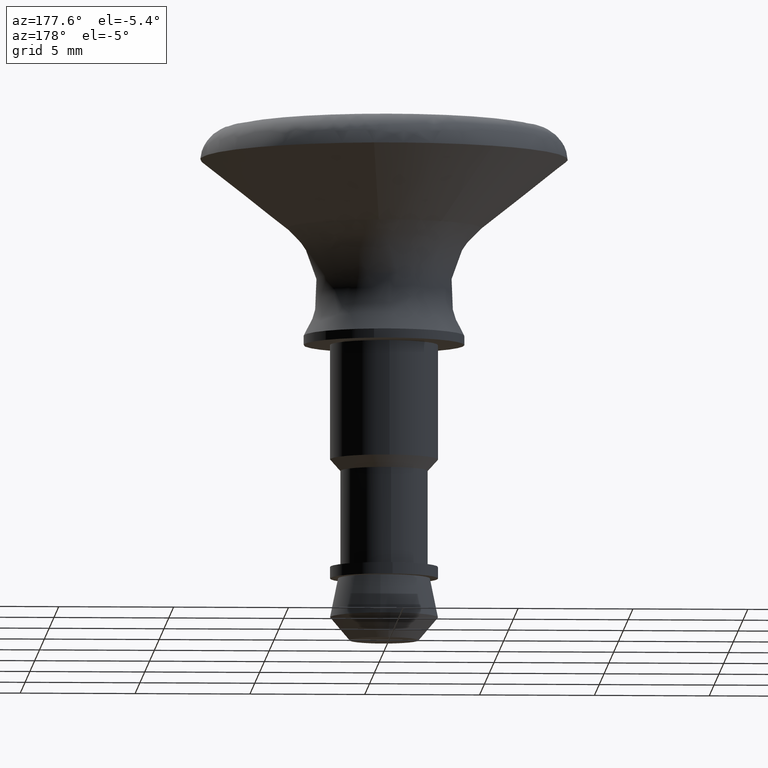
[diagram: clean part render]
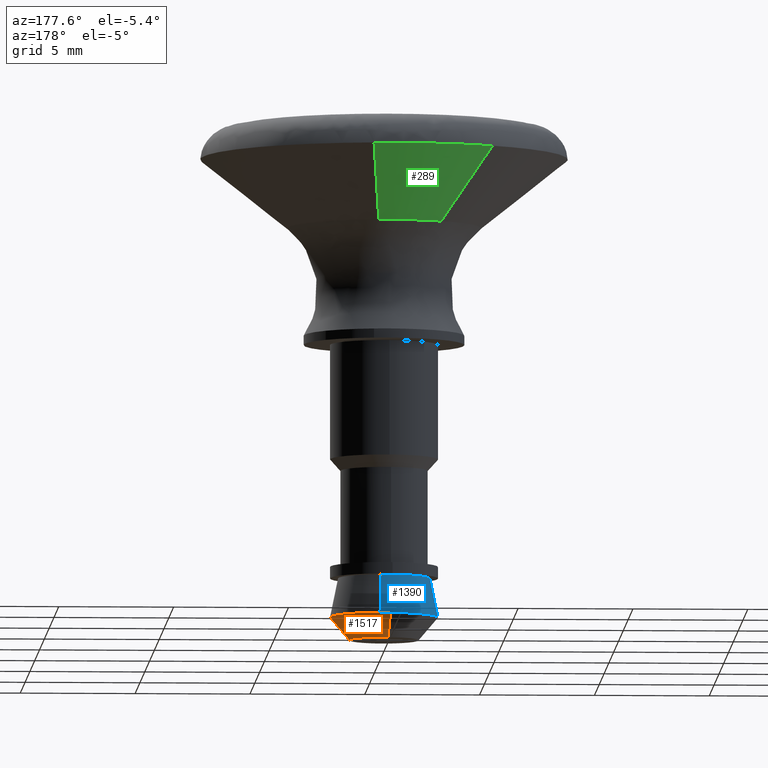
[diagram: same view with three faces highlighted in distinct colors, each labeled with its STEP entity id]
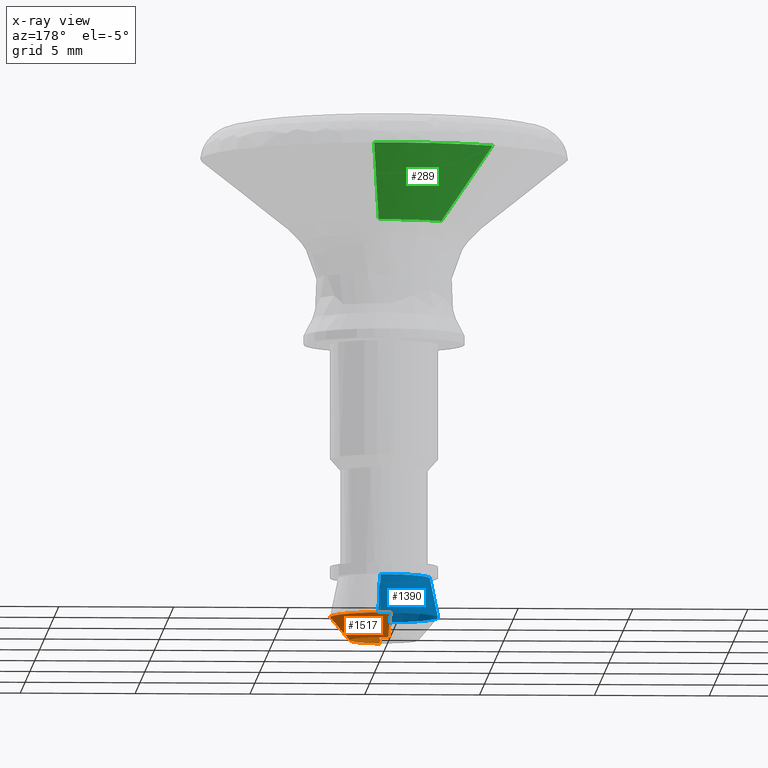
[diagram: x-ray of the same camera — body ghosted, the three highlighted faces saturated]
A machine part, auxiliary view with three faces highlighted in distinct colors.
The next image is the same camera in x-ray (body ghosted, the three faces saturated) — at least one of them is partly hidden behind the body in this view.
Their STEP definitions:

[orange] entity #1517 — the highlighted face is a freeform B-spline surface patch.
#1204=CARTESIAN_POINT('',(0.268136562146236,2.334652604573378,-11.900000000000890));
#1205=VERTEX_POINT('',#1204);
#1206=CARTESIAN_POINT('',(2.350000000000000,0.0,-11.900000000000000));
#1207=VERTEX_POINT('',#1206);
#1208=CARTESIAN_POINT('',(0.268136562146236,2.334652604573378,-11.900000000000894));
#1209=CARTESIAN_POINT('',(2.350000000000001,2.095549063427940,-11.899999999999999));
#1210=CARTESIAN_POINT('',(2.350000000000000,0.0,-11.900000000000000));
#1218=(BOUNDED_CURVE()B_SPLINE_CURVE(2,(#1208,#1209,#1210),.UNSPECIFIED.,.F.,.U.)B_SPLINE_CURVE_WITH_KNOTS((3,3),(0.269767755877532,0.500000000000000),.UNSPECIFIED.)CURVE()GEOMETRIC_REPRESENTATION_ITEM()RATIONAL_B_SPLINE_CURVE((0.957343736458842,0.730266147777304,1.0))REPRESENTATION_ITEM(''));
#1219=EDGE_CURVE('',#1205,#1207,#1218,.T.);
#1258=CARTESIAN_POINT('',(0.153692986142640,-2.344905054886845,-11.900017217113840));
#1259=VERTEX_POINT('',#1258);
#1265=CARTESIAN_POINT('',(2.350000000000000,0.0,-11.900000000000000));
#1266=CARTESIAN_POINT('',(2.349997921340955,-2.200983672277677,-11.900008608556918));
#1267=CARTESIAN_POINT('',(0.153692986142640,-2.344905054886846,-11.900017217113831));
#1275=(BOUNDED_CURVE()B_SPLINE_CURVE(2,(#1265,#1266,#1267),.UNSPECIFIED.,.F.,.U.)B_SPLINE_CURVE_WITH_KNOTS((3,3),(0.500000000000000,0.738580720876334),.UNSPECIFIED.)CURVE()GEOMETRIC_REPRESENTATION_ITEM()RATIONAL_B_SPLINE_CURVE((1.0,0.720485298862786,0.974465148868370))REPRESENTATION_ITEM(''));
#1276=EDGE_CURVE('',#1207,#1259,#1275,.T.);
#1307=CARTESIAN_POINT('',(-0.184378875007408,2.342755734274979,-11.899999999993170));
#1308=VERTEX_POINT('',#1307);
#1309=CARTESIAN_POINT('',(-0.184378875007408,2.342755734274979,-11.899999999993174));
#1310=CARTESIAN_POINT('',(-0.092331751514755,2.350000000000001,-11.900000000000002));
#1311=CARTESIAN_POINT('',(0.0,2.350000000000000,-11.900000000000000));
#1312=CARTESIAN_POINT('',(0.134507502315870,2.350000000000001,-11.900000000000000));
#1313=CARTESIAN_POINT('',(0.268136562146236,2.334652604573379,-11.900000000000896));
#1321=(BOUNDED_CURVE()B_SPLINE_CURVE(2,(#1309,#1310,#1311,#1312,#1313),.UNSPECIFIED.,.F.,.U.)B_SPLINE_CURVE_WITH_KNOTS((3,2,3),(0.236331300625960,0.250000000000000,0.269767755877533),.UNSPECIFIED.)CURVE()GEOMETRIC_REPRESENTATION_ITEM()RATIONAL_B_SPLINE_CURVE((0.969723356157609,0.983986122573375,1.0,0.976840633409244,0.957343736458842))REPRESENTATION_ITEM(''));
#1322=EDGE_CURVE('',#1308,#1205,#1321,.T.);
#1410=CARTESIAN_POINT('',(-0.117680797802618,1.495276308871712,-12.899999999982560));
#1411=VERTEX_POINT('',#1410);
#1412=CARTESIAN_POINT('',(-0.117680797802618,1.495276308871712,-12.899999999982560));
#1413=CARTESIAN_POINT('',(-0.184378875007408,2.342755734274979,-11.899999999993170));
#1414=QUASI_UNIFORM_CURVE('',1,(#1412,#1413),.UNSPECIFIED.,.F.,.U.);
#1415=EDGE_CURVE('',#1411,#1308,#1414,.T.);
#1432=CARTESIAN_POINT('',(0.117680797802617,-1.495276308871712,-12.899999999982560));
#1433=VERTEX_POINT('',#1432);
#1449=CARTESIAN_POINT('',(0.117680797802617,-1.495276308871712,-12.899999999982560));
#1450=CARTESIAN_POINT('',(0.153692986142640,-2.344905054886845,-11.900017217113840));
#1451=QUASI_UNIFORM_CURVE('',1,(#1449,#1450),.UNSPECIFIED.,.F.,.U.);
#1452=EDGE_CURVE('',#1433,#1259,#1451,.T.);
#1458=CARTESIAN_POINT('',(0.076224169737211,-1.477220799296524,-12.925000000000004));
#1459=CARTESIAN_POINT('',(0.096006915707925,-1.475663863422951,-12.925000000000001));
#1460=CARTESIAN_POINT('',(1.590102668981393,-1.358075977480914,-12.925000000000002));
#1461=CARTESIAN_POINT('',(1.474089323231154,0.116013345750239,-12.925000000000001));
#1462=CARTESIAN_POINT('',(1.358075977480914,1.590102668981393,-12.925000000000002));
#1463=CARTESIAN_POINT('',(-0.126454248476125,1.473267606365836,-12.925000000000002));
#1464=CARTESIAN_POINT('',(-0.136834066238670,1.472450696991396,-12.925000000000008));
#1465=CARTESIAN_POINT('',(0.122265280875915,-2.369495352516280,-11.874375000000001));
#1466=CARTESIAN_POINT('',(0.153997249894994,-2.366997992393571,-11.874375000000001));
#1467=CARTESIAN_POINT('',(2.550560407739587,-2.178384381358204,-11.874375000000001));
#1468=CARTESIAN_POINT('',(2.364472394548896,0.186088013190692,-11.874375000000001));
#1469=CARTESIAN_POINT('',(2.178384381358204,2.550560407739587,-11.874375000000001));
#1470=CARTESIAN_POINT('',(-0.202835455750967,2.363154342234453,-11.874374999999999));
#1471=CARTESIAN_POINT('',(-0.219484916657574,2.361844001243395,-11.874374999999997));
#1479=(BOUNDED_SURFACE()B_SPLINE_SURFACE(2,1,((#1458,#1465),(#1459,#1466),(#1460,#1467),(#1461,#1468),(#1462,#1469),(#1463,#1470),(#1464,#1471)),.UNSPECIFIED.,.F.,.F.,.U.)B_SPLINE_SURFACE_WITH_KNOTS((3,1,2,1,3),(2,2),(0.0,0.075852269472106,4.005552358089974,7.935252446707843,7.974731313946631),(0.0,1.0),.UNSPECIFIED.)GEOMETRIC_REPRESENTATION_ITEM()RATIONAL_B_SPLINE_SURFACE(((1.011307028454583,1.011307028454583),(1.005653514227292,1.005653514227292),(0.707106781186548,0.707106781186548),(1.0,1.0),(0.707106781186548,0.707106781186548),(1.002942487273818,1.002942487273818),(1.005884974547635,1.005884974547635)))REPRESENTATION_ITEM('')SURFACE());
#1480=ORIENTED_EDGE('',*,*,#1322,.T.);
#1481=ORIENTED_EDGE('',*,*,#1219,.T.);
#1482=ORIENTED_EDGE('',*,*,#1276,.T.);
#1483=ORIENTED_EDGE('',*,*,#1452,.F.);
#1484=CARTESIAN_POINT('',(1.499900000000000,0.0,-12.900000000000000));
#1485=VERTEX_POINT('',#1484);
#1486=CARTESIAN_POINT('',(1.499900000000000,0.0,-12.900000000000000));
#1487=CARTESIAN_POINT('',(1.499900000000000,-1.386493298216288,-12.899999999999999));
#1488=CARTESIAN_POINT('',(0.117680797802617,-1.495276308871712,-12.899999999982562));
#1496=(BOUNDED_CURVE()B_SPLINE_CURVE(2,(#1486,#1487,#1488),.UNSPECIFIED.,.F.,.U.)B_SPLINE_CURVE_WITH_KNOTS((3,3),(0.500000000000000,0.736331300605421),.UNSPECIFIED.)CURVE()GEOMETRIC_REPRESENTATION_ITEM()RATIONAL_B_SPLINE_CURVE((1.0,0.723120658637234,0.969723356114747))REPRESENTATION_ITEM(''));
#1497=EDGE_CURVE('',#1485,#1433,#1496,.T.);
#1498=ORIENTED_EDGE('',*,*,#1497,.F.);
#1499=CARTESIAN_POINT('',(-0.117680797802617,1.495276308871712,-12.899999999982560));
#1500=CARTESIAN_POINT('',(-0.058931231620616,1.499900000000001,-12.900000000000004));
#1501=CARTESIAN_POINT('',(0.0,1.499900000000000,-12.900000000000000));
#1502=CARTESIAN_POINT('',(1.499899999999999,1.499899999999999,-12.899999999999999));
#1503=CARTESIAN_POINT('',(1.499900000000000,0.0,-12.900000000000000));
#1511=(BOUNDED_CURVE()B_SPLINE_CURVE(2,(#1499,#1500,#1501,#1502,#1503),.UNSPECIFIED.,.F.,.U.)B_SPLINE_CURVE_WITH_KNOTS((3,2,3),(0.236331300605422,0.250000000000000,0.500000000000000),.UNSPECIFIED.)CURVE()GEOMETRIC_REPRESENTATION_ITEM()RATIONAL_B_SPLINE_CURVE((0.969723356114749,0.983986122549314,1.0,0.707106781186547,1.0))REPRESENTATION_ITEM(''));
#1512=EDGE_CURVE('',#1411,#1485,#1511,.T.);
#1513=ORIENTED_EDGE('',*,*,#1512,.F.);
#1514=ORIENTED_EDGE('',*,*,#1415,.T.);
#1515=EDGE_LOOP('',(#1480,#1481,#1482,#1483,#1498,#1513,#1514));
#1516=FACE_OUTER_BOUND('',#1515,.T.);
#1517=ADVANCED_FACE('',(#1516),#1479,.T.);

[blue] entity #1390 — the highlighted face is a freeform B-spline surface patch.
#1204=CARTESIAN_POINT('',(0.268136562146236,2.334652604573378,-11.900000000000890));
#1205=VERTEX_POINT('',#1204);
#1221=CARTESIAN_POINT('',(0.228189919558263,1.986839039940644,-10.200000000024630));
#1222=VERTEX_POINT('',#1221);
#1223=CARTESIAN_POINT('',(0.228189919558263,1.986839039940644,-10.200000000024630));
#1224=CARTESIAN_POINT('',(0.268136562146236,2.334652604573378,-11.900000000000890));
#1225=QUASI_UNIFORM_CURVE('',1,(#1223,#1224),.UNSPECIFIED.,.F.,.U.);
#1226=EDGE_CURVE('',#1222,#1205,#1225,.T.);
#1243=CARTESIAN_POINT('',(0.122090974220500,-1.996169783363738,-10.200000000000690));
#1244=VERTEX_POINT('',#1243);
#1258=CARTESIAN_POINT('',(0.153692986142640,-2.344905054886845,-11.900017217113840));
#1259=VERTEX_POINT('',#1258);
#1260=CARTESIAN_POINT('',(0.122090974220500,-1.996169783363738,-10.200000000000690));
#1261=CARTESIAN_POINT('',(0.153692986142640,-2.344905054886845,-11.900017217113840));
#1262=QUASI_UNIFORM_CURVE('',1,(#1260,#1261),.UNSPECIFIED.,.F.,.U.);
#1263=EDGE_CURVE('',#1244,#1259,#1262,.T.);
#1281=CARTESIAN_POINT('',(0.159757739684600,-1.985097129611754,-10.157500000000002));
#1282=CARTESIAN_POINT('',(0.140733533881952,-1.986260699884925,-10.157500000000001));
#1283=CARTESIAN_POINT('',(-1.865876961667211,-2.108990255414173,-10.157499999999999));
#1284=CARTESIAN_POINT('',(-1.987433608540693,-0.121556646873481,-10.157500000000001));
#1285=CARTESIAN_POINT('',(-2.108990255414173,1.865876961667211,-10.157499999999999));
#1286=CARTESIAN_POINT('',(-0.121556646873481,1.987433608540693,-10.157500000000001));
#1287=CARTESIAN_POINT('',(0.053225798084893,1.998123760830654,-10.157500000000001));
#1288=CARTESIAN_POINT('',(0.243058714274355,1.976321311323477,-10.157500000000002));
#1289=CARTESIAN_POINT('',(0.259006513567212,1.974489694890392,-10.157500000000002));
#1290=CARTESIAN_POINT('',(0.189269717520081,-2.351803259818898,-11.943562500000011));
#1291=CARTESIAN_POINT('',(0.166731178445733,-2.353181775923048,-11.943562500000006));
#1292=CARTESIAN_POINT('',(-2.210559602052406,-2.498583108917905,-11.943562500000002));
#1293=CARTESIAN_POINT('',(-2.354571355485155,-0.144011753432750,-11.943562500000001));
#1294=CARTESIAN_POINT('',(-2.498583108917905,2.210559602052406,-11.943562500000002));
#1295=CARTESIAN_POINT('',(-0.144011753432750,2.354571355485155,-11.943562500000001));
#1296=CARTESIAN_POINT('',(0.063058176637935,2.367236294962656,-11.943562499999999));
#1297=CARTESIAN_POINT('',(0.287958844950634,2.341406288431416,-11.943562499999999));
#1298=CARTESIAN_POINT('',(0.306852674277370,2.339236318290503,-11.943562499999999));
#1306=(BOUNDED_SURFACE()B_SPLINE_SURFACE(2,1,((#1281,#1290),(#1282,#1291),(#1283,#1292),(#1284,#1293),(#1285,#1294),(#1286,#1295),(#1287,#1296),(#1288,#1297),(#1289,#1298)),.UNSPECIFIED.,.F.,.F.,.U.)B_SPLINE_SURFACE_WITH_KNOTS((3,1,2,2,1,3),(2,2),(0.0,0.053548424638172,3.962020068184416,7.870491711730658,8.339508308956209,8.380998399310897),(0.0,1.0),.UNSPECIFIED.)GEOMETRIC_REPRESENTATION_ITEM()RATIONAL_B_SPLINE_SURFACE(((1.008025628370906,1.008025628370906),(1.004012814185453,1.004012814185453),(0.707106781186548,0.707106781186548),(1.0,1.0),(0.707106781186548,0.707106781186548),(1.0,1.0),(0.964852813742386,0.964852813742386),(0.935777970671557,0.935777970671557),(0.933414989156516,0.933414989156516)))REPRESENTATION_ITEM('')SURFACE());
#1307=CARTESIAN_POINT('',(-0.184378875007408,2.342755734274979,-11.899999999993170));
#1308=VERTEX_POINT('',#1307);
#1309=CARTESIAN_POINT('',(-0.184378875007408,2.342755734274979,-11.899999999993174));
#1310=CARTESIAN_POINT('',(-0.092331751514755,2.350000000000001,-11.900000000000002));
#1311=CARTESIAN_POINT('',(0.0,2.350000000000000,-11.900000000000000));
#1312=CARTESIAN_POINT('',(0.134507502315870,2.350000000000001,-11.900000000000000));
#1313=CARTESIAN_POINT('',(0.268136562146236,2.334652604573379,-11.900000000000896));
#1321=(BOUNDED_CURVE()B_SPLINE_CURVE(2,(#1309,#1310,#1311,#1312,#1313),.UNSPECIFIED.,.F.,.U.)B_SPLINE_CURVE_WITH_KNOTS((3,2,3),(0.236331300625960,0.250000000000000,0.269767755877533),.UNSPECIFIED.)CURVE()GEOMETRIC_REPRESENTATION_ITEM()RATIONAL_B_SPLINE_CURVE((0.969723356157609,0.983986122573375,1.0,0.976840633409244,0.957343736458842))REPRESENTATION_ITEM(''));
#1322=EDGE_CURVE('',#1308,#1205,#1321,.T.);
#1323=ORIENTED_EDGE('',*,*,#1322,.F.);
#1324=CARTESIAN_POINT('',(-2.350000000000000,0.0,-11.900000000000000));
#1325=VERTEX_POINT('',#1324);
#1326=CARTESIAN_POINT('',(-2.350000000000000,0.0,-11.900000000000000));
#1327=CARTESIAN_POINT('',(-2.350000000000001,2.172317655310255,-11.900000000000000));
#1328=CARTESIAN_POINT('',(-0.184378875007408,2.342755734274979,-11.899999999993168));
#1336=(BOUNDED_CURVE()B_SPLINE_CURVE(2,(#1326,#1327,#1328),.UNSPECIFIED.,.F.,.U.)B_SPLINE_CURVE_WITH_KNOTS((3,3),(0.0,0.236331300625960),.UNSPECIFIED.)CURVE()GEOMETRIC_REPRESENTATION_ITEM()RATIONAL_B_SPLINE_CURVE((1.0,0.723120658613172,0.969723356157609))REPRESENTATION_ITEM(''));
#1337=EDGE_CURVE('',#1325,#1308,#1336,.T.);
#1338=ORIENTED_EDGE('',*,*,#1337,.F.);
#1339=CARTESIAN_POINT('',(0.153692986142640,-2.344905054886846,-11.900017217113831));
#1340=CARTESIAN_POINT('',(0.076926835432969,-2.349937543892106,-11.900016953165647));
#1341=CARTESIAN_POINT('',(-0.000004025535872,-2.349938582107781,-11.900016671351059));
#1342=CARTESIAN_POINT('',(-2.350001946876827,-2.349970296359317,-11.900008062794141));
#1343=CARTESIAN_POINT('',(-2.350000000000000,0.0,-11.900000000000000));
#1351=(BOUNDED_CURVE()B_SPLINE_CURVE(2,(#1339,#1340,#1341,#1342,#1343),.UNSPECIFIED.,.F.,.U.)B_SPLINE_CURVE_WITH_KNOTS((3,2,3),(0.738580720876334,0.750000000000000,1.0),.UNSPECIFIED.)CURVE()GEOMETRIC_REPRESENTATION_ITEM()RATIONAL_B_SPLINE_CURVE((0.974465148868370,0.986621482323761,1.0,0.707106781186547,1.0))REPRESENTATION_ITEM(''));
#1352=EDGE_CURVE('',#1259,#1325,#1351,.T.);
#1353=ORIENTED_EDGE('',*,*,#1352,.F.);
#1354=ORIENTED_EDGE('',*,*,#1263,.F.);
#1355=CARTESIAN_POINT('',(-1.999900000000000,0.0,-10.199999999999999));
#1356=VERTEX_POINT('',#1355);
#1357=CARTESIAN_POINT('',(0.122090974220500,-1.996169783363739,-10.200000000000689));
#1358=CARTESIAN_POINT('',(0.061102471325592,-1.999900000000000,-10.199999999999999));
#1359=CARTESIAN_POINT('',(0.0,-1.999900000000000,-10.199999999999999));
#1360=CARTESIAN_POINT('',(-1.999900000000001,-1.999900000000001,-10.200000000000001));
#1361=CARTESIAN_POINT('',(-1.999900000000000,0.0,-10.199999999999999));
#1369=(BOUNDED_CURVE()B_SPLINE_CURVE(2,(#1357,#1358,#1359,#1360,#1361),.UNSPECIFIED.,.F.,.U.)B_SPLINE_CURVE_WITH_KNOTS((3,2,3),(0.739332962241150,0.750000000000000,1.0),.UNSPECIFIED.)CURVE()GEOMETRIC_REPRESENTATION_ITEM()RATIONAL_B_SPLINE_CURVE((0.976072041671449,0.987502787902424,1.0,0.707106781186548,1.0))REPRESENTATION_ITEM(''));
#1370=EDGE_CURVE('',#1244,#1356,#1369,.T.);
#1371=ORIENTED_EDGE('',*,*,#1370,.T.);
#1372=CARTESIAN_POINT('',(-1.999900000000000,0.0,-10.199999999999999));
#1373=CARTESIAN_POINT('',(-1.999900000000001,1.999900000000001,-10.200000000000001));
#1374=CARTESIAN_POINT('',(0.0,1.999900000000000,-10.199999999999999));
#1375=CARTESIAN_POINT('',(0.114468746471936,1.999900000000000,-10.200000000000001));
#1376=CARTESIAN_POINT('',(0.228189919558263,1.986839039940644,-10.200000000024630));
#1384=(BOUNDED_CURVE()B_SPLINE_CURVE(2,(#1372,#1373,#1374,#1375,#1376),.UNSPECIFIED.,.F.,.U.)B_SPLINE_CURVE_WITH_KNOTS((3,2,3),(0.0,0.250000000000000,0.269767755901045),.UNSPECIFIED.)CURVE()GEOMETRIC_REPRESENTATION_ITEM()RATIONAL_B_SPLINE_CURVE((1.0,0.707106781186548,1.0,0.976840633381697,0.957343736412462))REPRESENTATION_ITEM(''));
#1385=EDGE_CURVE('',#1356,#1222,#1384,.T.);
#1386=ORIENTED_EDGE('',*,*,#1385,.T.);
#1387=ORIENTED_EDGE('',*,*,#1226,.T.);
#1388=EDGE_LOOP('',(#1323,#1338,#1353,#1354,#1371,#1386,#1387));
#1389=FACE_OUTER_BOUND('',#1388,.T.);
#1390=ADVANCED_FACE('',(#1389),#1306,.T.);

[green] entity #289 — the highlighted face is a freeform B-spline surface patch.
#72=CARTESIAN_POINT('',(-4.451273431106951,6.647014858299115,8.102536294644695));
#73=VERTEX_POINT('',#72);
#87=CARTESIAN_POINT('',(-2.349221299765516,3.508054115693598,5.099000037088982));
#88=VERTEX_POINT('',#87);
#89=CARTESIAN_POINT('',(-2.349221299765516,3.508054115693598,5.099000037088982));
#90=CARTESIAN_POINT('',(-4.451273431106951,6.647014858299115,8.102536294644695));
#91=QUASI_UNIFORM_CURVE('',1,(#89,#90),.UNSPECIFIED.,.F.,.U.);
#92=EDGE_CURVE('',#88,#73,#91,.T.);
#156=CARTESIAN_POINT('',(0.404660771623894,4.202562795947735,5.099000037094942));
#157=VERTEX_POINT('',#156);
#171=CARTESIAN_POINT('',(0.766746014200358,7.962961816864624,8.102537222007197));
#172=VERTEX_POINT('',#171);
#173=CARTESIAN_POINT('',(0.404660771623894,4.202562795947735,5.099000037094942));
#174=CARTESIAN_POINT('',(0.766746014200358,7.962961816864624,8.102537222007197));
#175=QUASI_UNIFORM_CURVE('',1,(#173,#174),.UNSPECIFIED.,.F.,.U.);
#176=EDGE_CURVE('',#157,#172,#175,.T.);
#241=CARTESIAN_POINT('',(0.395608640545700,4.108552820400776,5.023911607452067));
#242=CARTESIAN_POINT('',(-1.071779777400445,4.249846254500901,5.023911607452067));
#243=CARTESIAN_POINT('',(-2.296669976276205,3.429580075544096,5.023911607452067));
#244=CARTESIAN_POINT('',(0.776024448526692,8.059322041845000,8.179502862424231));
#245=CARTESIAN_POINT('',(-2.102399253848353,8.336482720455926,8.179502862424231));
#246=CARTESIAN_POINT('',(-4.505139345109090,6.727451612611558,8.179502862424229));
#254=(BOUNDED_SURFACE()B_SPLINE_SURFACE(2,1,((#241,#244),(#242,#245),(#243,#246)),.UNSPECIFIED.,.F.,.F.,.U.)B_SPLINE_SURFACE_WITH_KNOTS((3,3),(2,2),(0.0,5.888000642196294),(0.0,5.070606452538949),.UNSPECIFIED.)GEOMETRIC_REPRESENTATION_ITEM()RATIONAL_B_SPLINE_SURFACE(((1.0,1.0),(0.871126983722081,0.871126983722081),(0.855662221768731,0.855662221768731)))REPRESENTATION_ITEM('')SURFACE());
#255=CARTESIAN_POINT('',(-4.451273431106951,6.647014858299113,8.102536294644695));
#256=CARTESIAN_POINT('',(-2.431195947758381,7.999790712140009,8.102536689197011));
#257=CARTESIAN_POINT('',(0.000000088561624,7.999791136700038,8.102537095439104));
#258=CARTESIAN_POINT('',(0.384257573456179,7.999791203802965,8.102537159646827));
#259=CARTESIAN_POINT('',(0.766746014200358,7.962961816864624,8.102537222007197));
#267=(BOUNDED_CURVE()B_SPLINE_CURVE(2,(#255,#256,#257,#258,#259),.UNSPECIFIED.,.F.,.U.)B_SPLINE_CURVE_WITH_KNOTS((3,2,3),(0.154565967469865,0.250000000000000,0.266651095235455),.UNSPECIFIED.)CURVE()GEOMETRIC_REPRESENTATION_ITEM()RATIONAL_B_SPLINE_CURVE((0.861746400587144,0.888192076111604,1.0,0.980492028478873,0.963582689690937))REPRESENTATION_ITEM(''));
#268=EDGE_CURVE('',#73,#172,#267,.T.);
#269=ORIENTED_EDGE('',*,*,#268,.T.);
#270=ORIENTED_EDGE('',*,*,#176,.F.);
#271=CARTESIAN_POINT('',(-2.349221299765516,3.508054115693598,5.099000037088982));
#272=CARTESIAN_POINT('',(-1.283097405136621,4.222000046655825,5.099000037093671));
#273=CARTESIAN_POINT('',(0.0,4.222000046655825,5.099000037093671));
#274=CARTESIAN_POINT('',(0.202797204869175,4.222000046655826,5.099000037093671));
#275=CARTESIAN_POINT('',(0.404660771623894,4.202562795947735,5.099000037094942));
#283=(BOUNDED_CURVE()B_SPLINE_CURVE(2,(#271,#272,#273,#274,#275),.UNSPECIFIED.,.F.,.U.)B_SPLINE_CURVE_WITH_KNOTS((3,2,3),(0.154565963839045,0.250000000000000,0.266651095235499),.UNSPECIFIED.)CURVE()GEOMETRIC_REPRESENTATION_ITEM()RATIONAL_B_SPLINE_CURVE((0.861746398574875,0.888192071857834,1.0,0.980492028478821,0.963582689690847))REPRESENTATION_ITEM(''));
#284=EDGE_CURVE('',#88,#157,#283,.T.);
#285=ORIENTED_EDGE('',*,*,#284,.F.);
#286=ORIENTED_EDGE('',*,*,#92,.T.);
#287=EDGE_LOOP('',(#269,#270,#285,#286));
#288=FACE_OUTER_BOUND('',#287,.T.);
#289=ADVANCED_FACE('',(#288),#254,.T.);